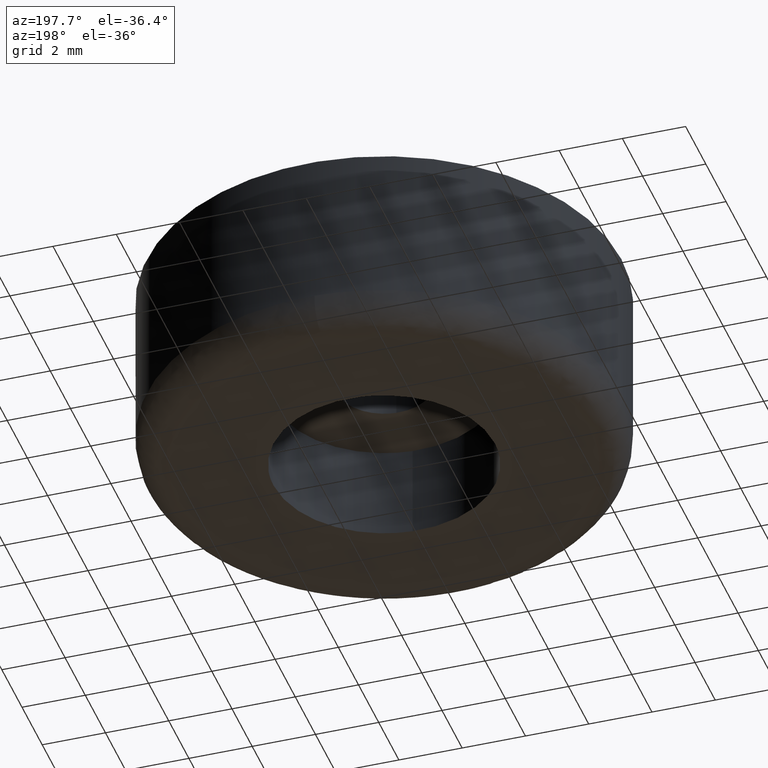
[diagram: clean part render]
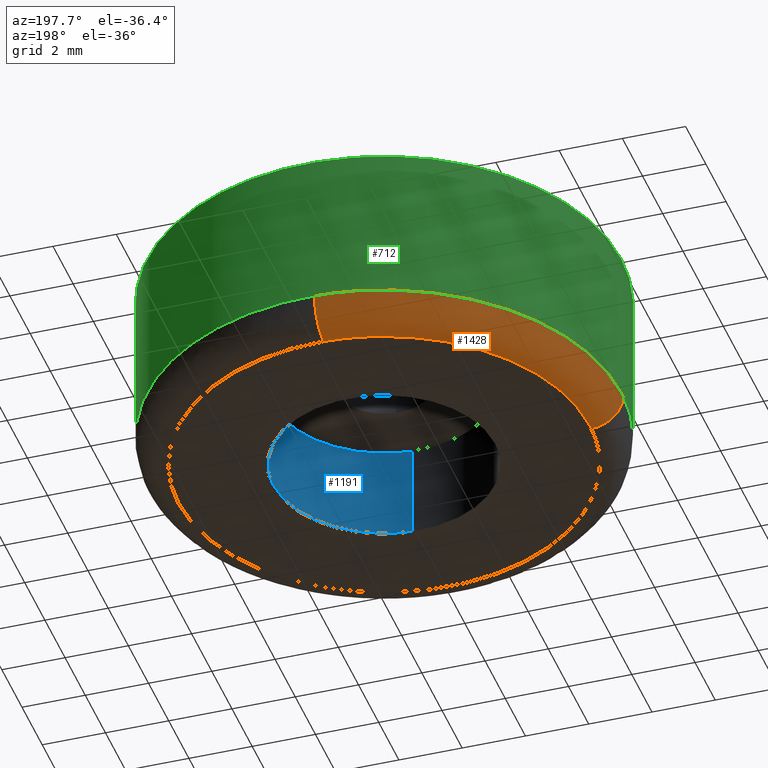
[diagram: same view with three faces highlighted in distinct colors, each labeled with its STEP entity id]
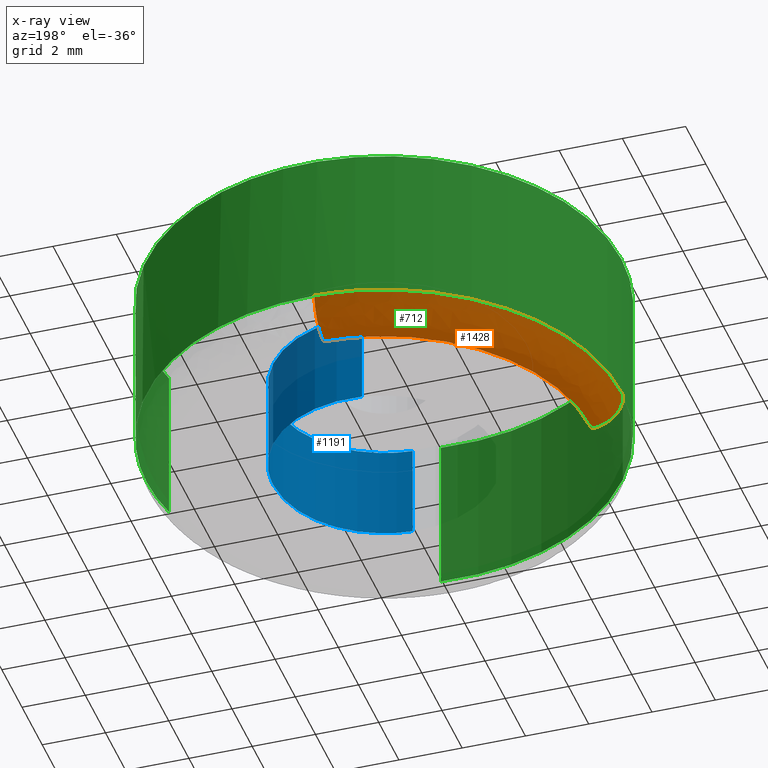
[diagram: x-ray of the same camera — body ghosted, the three highlighted faces saturated]
A machine part, auxiliary view with three faces highlighted in distinct colors.
The next image is the same camera in x-ray (body ghosted, the three faces saturated) — at least one of them is partly hidden behind the body in this view.
Their STEP definitions:

[orange] entity #1428 — the highlighted face is a freeform B-spline surface patch.
#599=CARTESIAN_POINT('',(-0.188475715825910,7.497631419624726,0.999999999969388));
#600=VERTEX_POINT('',#599);
#616=CARTESIAN_POINT('',(-7.500000000000000,0.0,1.0));
#617=VERTEX_POINT('',#616);
#618=CARTESIAN_POINT('',(-7.500000000000000,0.0,1.0));
#619=CARTESIAN_POINT('',(-7.500000000000000,7.313834071353154,1.0));
#620=CARTESIAN_POINT('',(-0.188475715825910,7.497631419624726,0.999999999969388));
#628=(BOUNDED_CURVE()B_SPLINE_CURVE(2,(#618,#619,#620),.UNSPECIFIED.,.F.,.U.)B_SPLINE_CURVE_WITH_KNOTS((3,3),(0.0,0.245579891769767),.UNSPECIFIED.)CURVE()GEOMETRIC_REPRESENTATION_ITEM()RATIONAL_B_SPLINE_CURVE((1.0,0.712285260094775,0.989826157681484))REPRESENTATION_ITEM(''));
#629=EDGE_CURVE('',#617,#600,#628,.T.);
#631=CARTESIAN_POINT('',(-7.497631419624732,-0.188475715825685,0.999999999969351));
#632=VERTEX_POINT('',#631);
#633=CARTESIAN_POINT('',(-7.497631419624732,-0.188475715825685,0.999999999969351));
#634=CARTESIAN_POINT('',(-7.500000000000000,-0.094252740926001,1.0));
#635=CARTESIAN_POINT('',(-7.500000000000000,0.0,1.0));
#643=(BOUNDED_CURVE()B_SPLINE_CURVE(2,(#633,#634,#635),.UNSPECIFIED.,.F.,.U.)B_SPLINE_CURVE_WITH_KNOTS((3,3),(0.995579891769777,1.0),.UNSPECIFIED.)CURVE()GEOMETRIC_REPRESENTATION_ITEM()RATIONAL_B_SPLINE_CURVE((0.989826157681507,0.994821521091785,1.0))REPRESENTATION_ITEM(''));
#644=EDGE_CURVE('',#632,#617,#643,.T.);
#1308=CARTESIAN_POINT('',(-0.163345620416824,6.497947230636082,1.874299E-016));
#1309=VERTEX_POINT('',#1308);
#1327=CARTESIAN_POINT('',(-0.188475715825910,7.497631419624727,0.999999999969388));
#1328=CARTESIAN_POINT('',(-0.188475715823492,7.497631419563542,5.908459E-010));
#1329=CARTESIAN_POINT('',(-0.163345620416824,6.497947230636082,1.874299E-016));
#1337=(BOUNDED_CURVE()B_SPLINE_CURVE(2,(#1327,#1328,#1329),.UNSPECIFIED.,.F.,.U.)B_SPLINE_CURVE_WITH_KNOTS((3,3),(-1.723441281921734,-0.263586879539333),.UNSPECIFIED.)CURVE()GEOMETRIC_REPRESENTATION_ITEM()RATIONAL_B_SPLINE_CURVE((0.883897567116448,0.626638727356608,0.888510408843165))REPRESENTATION_ITEM(''));
#1338=EDGE_CURVE('',#600,#1309,#1337,.T.);
#1344=CARTESIAN_POINT('',(-6.497947230641152,-0.163345620417484,1.718108E-016));
#1345=VERTEX_POINT('',#1344);
#1346=CARTESIAN_POINT('',(-7.497631419624733,-0.188475715825685,0.999999999969351));
#1347=CARTESIAN_POINT('',(-7.497631419563468,-0.188475715823490,6.010167E-010));
#1348=CARTESIAN_POINT('',(-6.497947230641152,-0.163345620417484,1.718108E-016));
#1356=(BOUNDED_CURVE()B_SPLINE_CURVE(2,(#1346,#1347,#1348),.UNSPECIFIED.,.F.,.U.)B_SPLINE_CURVE_WITH_KNOTS((3,3),(-1.723441281921656,-0.263586879549860),.UNSPECIFIED.)CURVE()GEOMETRIC_REPRESENTATION_ITEM()RATIONAL_B_SPLINE_CURVE((0.883897567116421,0.626638727358476,0.888510408839388))REPRESENTATION_ITEM(''));
#1357=EDGE_CURVE('',#632,#1345,#1356,.T.);
#1377=CARTESIAN_POINT('',(-7.495198495044043,-0.188414556883462,1.069724195741099));
#1378=CARTESIAN_POINT('',(-7.683613051927504,7.306783938160581,1.069724195741099));
#1379=CARTESIAN_POINT('',(-0.188414556883462,7.495198495044043,1.069724195741099));
#1380=CARTESIAN_POINT('',(-7.575346138372714,-0.190429311090840,-0.077335954148859));
#1381=CARTESIAN_POINT('',(-7.765775449463555,7.384916827281872,-0.077335954148859));
#1382=CARTESIAN_POINT('',(-0.190429311090841,7.575346138372714,-0.077335954148859));
#1383=CARTESIAN_POINT('',(-6.428618323941044,-0.161602827954343,0.002407665721173));
#1384=CARTESIAN_POINT('',(-6.590221151895387,6.267015495986699,0.002407665721173));
#1385=CARTESIAN_POINT('',(-0.161602827954344,6.428618323941044,0.002407665721173));
#1393=(BOUNDED_SURFACE()B_SPLINE_SURFACE(2,2,((#1377,#1380,#1383),(#1378,#1381,#1384),(#1379,#1382,#1385)),.UNSPECIFIED.,.F.,.F.,.U.)B_SPLINE_SURFACE_WITH_KNOTS((3,3),(3,3),(0.0,12.422374596327000),(0.0,1.822370621908858),.UNSPECIFIED.)GEOMETRIC_REPRESENTATION_ITEM()RATIONAL_B_SPLINE_SURFACE(((0.910892946007135,0.599412883198042,0.915966720026040),(0.644098579056637,0.423848914439916,0.647686279071612),(0.910892946007135,0.599412883198042,0.915966720026040)))REPRESENTATION_ITEM('')SURFACE());
#1394=CARTESIAN_POINT('',(-6.500000000000000,0.0,0.0));
#1395=VERTEX_POINT('',#1394);
#1396=CARTESIAN_POINT('',(-6.500000000000000,0.0,0.0));
#1397=CARTESIAN_POINT('',(-6.499999999999999,6.338656195120151,0.0));
#1398=CARTESIAN_POINT('',(-0.163345620416824,6.497947230636082,1.874299E-016));
#1406=(BOUNDED_CURVE()B_SPLINE_CURVE(2,(#1396,#1397,#1398),.UNSPECIFIED.,.F.,.U.)B_SPLINE_CURVE_WITH_KNOTS((3,3),(0.0,0.245579891768315),.UNSPECIFIED.)CURVE()GEOMETRIC_REPRESENTATION_ITEM()RATIONAL_B_SPLINE_CURVE((1.0,0.712285260096475,0.989826157678204))REPRESENTATION_ITEM(''));
#1407=EDGE_CURVE('',#1395,#1309,#1406,.T.);
#1408=ORIENTED_EDGE('',*,*,#1407,.F.);
#1409=CARTESIAN_POINT('',(-6.497947230641152,-0.163345620417484,1.718108E-016));
#1410=CARTESIAN_POINT('',(-6.500000000000000,-0.081685708830220,0.0));
#1411=CARTESIAN_POINT('',(-6.500000000000000,0.0,0.0));
#1419=(BOUNDED_CURVE()B_SPLINE_CURVE(2,(#1409,#1410,#1411),.UNSPECIFIED.,.F.,.U.)B_SPLINE_CURVE_WITH_KNOTS((3,3),(0.995579891768287,1.0),.UNSPECIFIED.)CURVE()GEOMETRIC_REPRESENTATION_ITEM()RATIONAL_B_SPLINE_CURVE((0.989826157678138,0.994821521090039,1.0))REPRESENTATION_ITEM(''));
#1420=EDGE_CURVE('',#1345,#1395,#1419,.T.);
#1421=ORIENTED_EDGE('',*,*,#1420,.F.);
#1422=ORIENTED_EDGE('',*,*,#1357,.F.);
#1423=ORIENTED_EDGE('',*,*,#644,.T.);
#1424=ORIENTED_EDGE('',*,*,#629,.T.);
#1425=ORIENTED_EDGE('',*,*,#1338,.T.);
#1426=EDGE_LOOP('',(#1408,#1421,#1422,#1423,#1424,#1425));
#1427=FACE_OUTER_BOUND('',#1426,.T.);
#1428=ADVANCED_FACE('',(#1427),#1393,.T.);

[blue] entity #1191 — the highlighted face is a freeform B-spline surface patch.
#1085=CARTESIAN_POINT('',(-0.464692969978117,3.469403091785194,3.075000000000001));
#1086=CARTESIAN_POINT('',(-0.438833692727048,3.472476858872088,3.075000000000001));
#1087=CARTESIAN_POINT('',(-0.313651550232922,3.487356654070120,3.075000000000001));
#1088=CARTESIAN_POINT('',(-0.213669888371999,3.493471794476533,3.075000000000001));
#1089=CARTESIAN_POINT('',(3.279801906104533,3.707141682848533,3.075000000000000));
#1090=CARTESIAN_POINT('',(3.493471794476533,0.213669888371999,3.075000000000001));
#1091=CARTESIAN_POINT('',(3.707141682848533,-3.279801906104533,3.075000000000000));
#1092=CARTESIAN_POINT('',(0.188545704601122,-3.495008455385102,3.075000000000000));
#1093=CARTESIAN_POINT('',(0.163570762186099,-3.496535988301314,3.075000000000002));
#1094=CARTESIAN_POINT('',(-0.464692969978117,3.469403091785194,-0.076875000000000));
#1095=CARTESIAN_POINT('',(-0.438833692727048,3.472476858872088,-0.076875000000000));
#1096=CARTESIAN_POINT('',(-0.313651550232922,3.487356654070120,-0.076875000000000));
#1097=CARTESIAN_POINT('',(-0.213669888371999,3.493471794476533,-0.076875000000000));
#1098=CARTESIAN_POINT('',(3.279801906104533,3.707141682848533,-0.076875000000000));
#1099=CARTESIAN_POINT('',(3.493471794476533,0.213669888371999,-0.076875000000000));
#1100=CARTESIAN_POINT('',(3.707141682848533,-3.279801906104533,-0.076875000000000));
#1101=CARTESIAN_POINT('',(0.188545704601122,-3.495008455385102,-0.076875000000000));
#1102=CARTESIAN_POINT('',(0.163570762186099,-3.496535988301314,-0.076875000000000));
#1110=(BOUNDED_SURFACE()B_SPLINE_SURFACE(2,1,((#1085,#1094),(#1086,#1095),(#1087,#1096),(#1088,#1097),(#1089,#1098),(#1090,#1099),(#1091,#1100),(#1092,#1101),(#1093,#1102)),.UNSPECIFIED.,.F.,.F.,.U.)B_SPLINE_SURFACE_WITH_KNOTS((3,1,2,2,1,3),(2,2),(0.0,0.059143901406196,0.291103496335129,6.090093369558459,11.889083242781791,11.948239096760179),(0.0,3.151875000000002),.UNSPECIFIED.)GEOMETRIC_REPRESENTATION_ITEM()RATIONAL_B_SPLINE_SURFACE(((0.972009319445107,0.972009319445107),(0.974757560120117,0.974757560120117),(0.988284271247462,0.988284271247462),(1.0,1.0),(0.707106781186548,0.707106781186548),(1.0,1.0),(0.707106781186548,0.707106781186548),(1.002987821821072,1.002987821821072),(1.005975643642143,1.005975643642143)))REPRESENTATION_ITEM('')SURFACE());
#1111=CARTESIAN_POINT('',(-0.413114733030786,3.475533947083044,-1.670294E-014));
#1112=VERTEX_POINT('',#1111);
#1113=CARTESIAN_POINT('',(3.500000000000000,0.0,0.0));
#1114=VERTEX_POINT('',#1113);
#1115=CARTESIAN_POINT('',(-0.413114733030786,3.475533947083044,-1.670294E-014));
#1116=CARTESIAN_POINT('',(-0.207281847752051,3.500000000000000,0.0));
#1117=CARTESIAN_POINT('',(0.0,3.500000000000000,0.0));
#1118=CARTESIAN_POINT('',(3.500000000000000,3.500000000000000,0.0));
#1119=CARTESIAN_POINT('',(3.500000000000000,0.0,0.0));
#1127=(BOUNDED_CURVE()B_SPLINE_CURVE(2,(#1115,#1116,#1117,#1118,#1119),.UNSPECIFIED.,.F.,.U.)B_SPLINE_CURVE_WITH_KNOTS((3,2,3),(0.229562720940656,0.250000000000000,0.500000000000000),.UNSPECIFIED.)CURVE()GEOMETRIC_REPRESENTATION_ITEM()RATIONAL_B_SPLINE_CURVE((0.956027239151607,0.976056238210079,1.0,0.707106781186547,1.0))REPRESENTATION_ITEM(''));
#1128=EDGE_CURVE('',#1112,#1114,#1127,.T.);
#1129=ORIENTED_EDGE('',*,*,#1128,.T.);
#1130=CARTESIAN_POINT('',(0.213664643025975,-3.493472115287735,-2.089995E-014));
#1131=VERTEX_POINT('',#1130);
#1132=CARTESIAN_POINT('',(3.500000000000000,0.0,0.0));
#1133=CARTESIAN_POINT('',(3.500000000000000,-3.292476186960466,0.0));
#1134=CARTESIAN_POINT('',(0.213664643025976,-3.493472115287735,-2.089995E-014));
#1142=(BOUNDED_CURVE()B_SPLINE_CURVE(2,(#1132,#1133,#1134),.UNSPECIFIED.,.F.,.U.)B_SPLINE_CURVE_WITH_KNOTS((3,3),(0.500000000000000,0.739333221315991),.UNSPECIFIED.)CURVE()GEOMETRIC_REPRESENTATION_ITEM()RATIONAL_B_SPLINE_CURVE((1.0,0.719603689759067,0.976072596918779))REPRESENTATION_ITEM(''));
#1143=EDGE_CURVE('',#1114,#1131,#1142,.T.);
#1144=ORIENTED_EDGE('',*,*,#1143,.T.);
#1145=CARTESIAN_POINT('',(0.213664707766594,-3.493472111328224,3.0));
#1146=VERTEX_POINT('',#1145);
#1147=CARTESIAN_POINT('',(0.213664707766594,-3.493472111328224,3.0));
#1148=CARTESIAN_POINT('',(0.213664643025975,-3.493472115287735,-2.089995E-014));
#1149=QUASI_UNIFORM_CURVE('',1,(#1147,#1148),.UNSPECIFIED.,.F.,.U.);
#1150=EDGE_CURVE('',#1146,#1131,#1149,.T.);
#1151=ORIENTED_EDGE('',*,*,#1150,.F.);
#1152=CARTESIAN_POINT('',(3.500000000000000,0.0,3.0));
#1153=VERTEX_POINT('',#1152);
#1154=CARTESIAN_POINT('',(3.500000000000000,0.0,3.0));
#1155=CARTESIAN_POINT('',(3.499999999999999,-3.292476125830673,3.000000000000001));
#1156=CARTESIAN_POINT('',(0.213664707766594,-3.493472111328224,3.0));
#1164=(BOUNDED_CURVE()B_SPLINE_CURVE(2,(#1154,#1155,#1156),.UNSPECIFIED.,.F.,.U.)B_SPLINE_CURVE_WITH_KNOTS((3,3),(0.500000000000000,0.739333218118373),.UNSPECIFIED.)CURVE()GEOMETRIC_REPRESENTATION_ITEM()RATIONAL_B_SPLINE_CURVE((1.0,0.719603693505311,0.976072590065658))REPRESENTATION_ITEM(''));
#1165=EDGE_CURVE('',#1153,#1146,#1164,.T.);
#1166=ORIENTED_EDGE('',*,*,#1165,.F.);
#1167=CARTESIAN_POINT('',(-0.413114795826384,3.475533939619020,3.0));
#1168=VERTEX_POINT('',#1167);
#1169=CARTESIAN_POINT('',(-0.413114795826384,3.475533939619021,3.000000000000000));
#1170=CARTESIAN_POINT('',(-0.207281879481770,3.500000000000001,3.0));
#1171=CARTESIAN_POINT('',(0.0,3.500000000000000,3.0));
#1172=CARTESIAN_POINT('',(3.500000000000000,3.500000000000000,3.000000000000000));
#1173=CARTESIAN_POINT('',(3.500000000000000,0.0,3.0));
#1181=(BOUNDED_CURVE()B_SPLINE_CURVE(2,(#1169,#1170,#1171,#1172,#1173),.UNSPECIFIED.,.F.,.U.)B_SPLINE_CURVE_WITH_KNOTS((3,2,3),(0.229562717887121,0.250000000000000,0.500000000000000),.UNSPECIFIED.)CURVE()GEOMETRIC_REPRESENTATION_ITEM()RATIONAL_B_SPLINE_CURVE((0.956027233166540,0.976056234632641,1.0,0.707106781186547,1.0))REPRESENTATION_ITEM(''));
#1182=EDGE_CURVE('',#1168,#1153,#1181,.T.);
#1183=ORIENTED_EDGE('',*,*,#1182,.F.);
#1184=CARTESIAN_POINT('',(-0.413114795826384,3.475533939619020,3.0));
#1185=CARTESIAN_POINT('',(-0.413114733030786,3.475533947083044,-1.670294E-014));
#1186=QUASI_UNIFORM_CURVE('',1,(#1184,#1185),.UNSPECIFIED.,.F.,.U.);
#1187=EDGE_CURVE('',#1168,#1112,#1186,.T.);
#1188=ORIENTED_EDGE('',*,*,#1187,.T.);
#1189=EDGE_LOOP('',(#1129,#1144,#1151,#1166,#1183,#1188));
#1190=FACE_OUTER_BOUND('',#1189,.T.);
#1191=ADVANCED_FACE('',(#1190),#1110,.F.);

[green] entity #712 — the highlighted face is a freeform B-spline surface patch.
#511=CARTESIAN_POINT('',(7.319767499703203,-1.634320577568768,0.999999999999985));
#512=VERTEX_POINT('',#511);
#513=CARTESIAN_POINT('',(0.588438864141156,-7.476880345648791,1.000000000000012));
#514=VERTEX_POINT('',#513);
#528=CARTESIAN_POINT('',(7.319767486532108,-1.634320636559426,6.0));
#529=VERTEX_POINT('',#528);
#530=CARTESIAN_POINT('',(7.319767486532108,-1.634320636559426,6.0));
#531=CARTESIAN_POINT('',(7.319767499703203,-1.634320577568768,0.999999999999985));
#532=QUASI_UNIFORM_CURVE('',1,(#530,#531),.UNSPECIFIED.,.F.,.U.);
#533=EDGE_CURVE('',#529,#512,#532,.T.);
#535=CARTESIAN_POINT('',(0.588438917835223,-7.476880341423037,6.0));
#536=VERTEX_POINT('',#535);
#550=CARTESIAN_POINT('',(0.588438917835223,-7.476880341423037,6.0));
#551=CARTESIAN_POINT('',(0.588438864141156,-7.476880345648791,1.000000000000012));
#552=QUASI_UNIFORM_CURVE('',1,(#550,#551),.UNSPECIFIED.,.F.,.U.);
#553=EDGE_CURVE('',#536,#514,#552,.T.);
#558=CARTESIAN_POINT('',(0.588443217958836,-7.476880002998457,6.125000000000767));
#559=CARTESIAN_POINT('',(-6.888436785039621,-8.065323220957295,6.125000000000767));
#560=CARTESIAN_POINT('',(-7.476880002998457,-0.588443217958836,6.125000000000767));
#561=CARTESIAN_POINT('',(-8.065323220957295,6.888436785039621,6.125000000000767));
#562=CARTESIAN_POINT('',(-0.588443217958836,7.476880002998457,6.125000000000767));
#563=CARTESIAN_POINT('',(6.888436785039621,8.065323220957295,6.125000000000767));
#564=CARTESIAN_POINT('',(7.476880002998457,0.588443217958836,6.125000000000767));
#565=CARTESIAN_POINT('',(7.565276593325443,-0.534741956715614,6.125000000000767));
#566=CARTESIAN_POINT('',(7.319766432520155,-1.634325357250233,6.125000000000766));
#567=CARTESIAN_POINT('',(0.588443217958836,-7.476880002998457,0.871874999968565));
#568=CARTESIAN_POINT('',(-6.888436785039621,-8.065323220957295,0.871874999968565));
#569=CARTESIAN_POINT('',(-7.476880002998457,-0.588443217958836,0.871874999968565));
#570=CARTESIAN_POINT('',(-8.065323220957295,6.888436785039621,0.871874999968565));
#571=CARTESIAN_POINT('',(-0.588443217958836,7.476880002998457,0.871874999968565));
#572=CARTESIAN_POINT('',(6.888436785039621,8.065323220957295,0.871874999968565));
#573=CARTESIAN_POINT('',(7.476880002998457,0.588443217958836,0.871874999968565));
#574=CARTESIAN_POINT('',(7.565276593325443,-0.534741956715614,0.871874999968565));
#575=CARTESIAN_POINT('',(7.319766432520155,-1.634325357250233,0.871874999968565));
#583=(BOUNDED_SURFACE()B_SPLINE_SURFACE(2,1,((#558,#567),(#559,#568),(#560,#569),(#561,#570),(#562,#571),(#563,#572),(#564,#573),(#565,#574),(#566,#575)),.UNSPECIFIED.,.F.,.F.,.U.)B_SPLINE_SURFACE_WITH_KNOTS((3,2,2,2,3),(2,2),(0.0,12.426406871192849,24.852813742385699,37.279220613578552,39.764501987817113),(0.0,5.253125000032203),.UNSPECIFIED.)GEOMETRIC_REPRESENTATION_ITEM()RATIONAL_B_SPLINE_SURFACE(((1.0,1.0),(0.707106781186548,0.707106781186548),(1.0,1.0),(0.707106781186548,0.707106781186548),(1.0,1.0),(0.707106781186548,0.707106781186548),(1.0,1.0),(0.941421356237310,0.941421356237310),(0.906274169979695,0.906274169979695)))REPRESENTATION_ITEM('')SURFACE());
#584=CARTESIAN_POINT('',(7.500000000000000,0.0,1.0));
#585=VERTEX_POINT('',#584);
#586=CARTESIAN_POINT('',(7.500000000000000,0.0,1.0));
#587=CARTESIAN_POINT('',(7.500000000000000,-0.827098288283712,1.0));
#588=CARTESIAN_POINT('',(7.319767499703203,-1.634320577568768,0.999999999999985));
#596=(BOUNDED_CURVE()B_SPLINE_CURVE(2,(#586,#587,#588),.UNSPECIFIED.,.F.,.U.)B_SPLINE_CURVE_WITH_KNOTS((3,3),(0.500000000000000,0.537286560370751),.UNSPECIFIED.)CURVE()GEOMETRIC_REPRESENTATION_ITEM()RATIONAL_B_SPLINE_CURVE((1.0,0.956316077258115,0.925662740296602))REPRESENTATION_ITEM(''));
#597=EDGE_CURVE('',#585,#512,#596,.T.);
#598=ORIENTED_EDGE('',*,*,#597,.F.);
#599=CARTESIAN_POINT('',(-0.188475715825910,7.497631419624726,0.999999999969388));
#600=VERTEX_POINT('',#599);
#601=CARTESIAN_POINT('',(-0.188475715825910,7.497631419624726,0.999999999969388));
#602=CARTESIAN_POINT('',(-0.094252740926227,7.499999999999999,1.0));
#603=CARTESIAN_POINT('',(0.0,7.500000000000000,1.0));
#604=CARTESIAN_POINT('',(7.500000000000000,7.500000000000000,1.0));
#605=CARTESIAN_POINT('',(7.500000000000000,0.0,1.0));
#613=(BOUNDED_CURVE()B_SPLINE_CURVE(2,(#601,#602,#603,#604,#605),.UNSPECIFIED.,.F.,.U.)B_SPLINE_CURVE_WITH_KNOTS((3,2,3),(0.245579891769767,0.250000000000000,0.500000000000000),.UNSPECIFIED.)CURVE()GEOMETRIC_REPRESENTATION_ITEM()RATIONAL_B_SPLINE_CURVE((0.989826157681483,0.994821521091772,1.0,0.707106781186547,1.0))REPRESENTATION_ITEM(''));
#614=EDGE_CURVE('',#600,#585,#613,.T.);
#615=ORIENTED_EDGE('',*,*,#614,.F.);
#616=CARTESIAN_POINT('',(-7.500000000000000,0.0,1.0));
#617=VERTEX_POINT('',#616);
#618=CARTESIAN_POINT('',(-7.500000000000000,0.0,1.0));
#619=CARTESIAN_POINT('',(-7.500000000000000,7.313834071353154,1.0));
#620=CARTESIAN_POINT('',(-0.188475715825910,7.497631419624726,0.999999999969388));
#628=(BOUNDED_CURVE()B_SPLINE_CURVE(2,(#618,#619,#620),.UNSPECIFIED.,.F.,.U.)B_SPLINE_CURVE_WITH_KNOTS((3,3),(0.0,0.245579891769767),.UNSPECIFIED.)CURVE()GEOMETRIC_REPRESENTATION_ITEM()RATIONAL_B_SPLINE_CURVE((1.0,0.712285260094775,0.989826157681484))REPRESENTATION_ITEM(''));
#629=EDGE_CURVE('',#617,#600,#628,.T.);
#630=ORIENTED_EDGE('',*,*,#629,.F.);
#631=CARTESIAN_POINT('',(-7.497631419624732,-0.188475715825685,0.999999999969351));
#632=VERTEX_POINT('',#631);
#633=CARTESIAN_POINT('',(-7.497631419624732,-0.188475715825685,0.999999999969351));
#634=CARTESIAN_POINT('',(-7.500000000000000,-0.094252740926001,1.0));
#635=CARTESIAN_POINT('',(-7.500000000000000,0.0,1.0));
#643=(BOUNDED_CURVE()B_SPLINE_CURVE(2,(#633,#634,#635),.UNSPECIFIED.,.F.,.U.)B_SPLINE_CURVE_WITH_KNOTS((3,3),(0.995579891769777,1.0),.UNSPECIFIED.)CURVE()GEOMETRIC_REPRESENTATION_ITEM()RATIONAL_B_SPLINE_CURVE((0.989826157681507,0.994821521091785,1.0))REPRESENTATION_ITEM(''));
#644=EDGE_CURVE('',#632,#617,#643,.T.);
#645=ORIENTED_EDGE('',*,*,#644,.F.);
#646=CARTESIAN_POINT('',(0.588438864141156,-7.476880345648791,1.000000000000012));
#647=CARTESIAN_POINT('',(0.294673615546460,-7.500000000000000,1.0));
#648=CARTESIAN_POINT('',(0.0,-7.500000000000000,1.0));
#649=CARTESIAN_POINT('',(-7.313834071353607,-7.499999999999999,1.0));
#650=CARTESIAN_POINT('',(-7.497631419624732,-0.188475715825685,0.999999999969351));
#658=(BOUNDED_CURVE()B_SPLINE_CURVE(2,(#646,#647,#648,#649,#650),.UNSPECIFIED.,.F.,.U.)B_SPLINE_CURVE_WITH_KNOTS((3,2,3),(0.736331400453952,0.750000000000000,0.995579891769777),.UNSPECIFIED.)CURVE()GEOMETRIC_REPRESENTATION_ITEM()RATIONAL_B_SPLINE_CURVE((0.969723564491107,0.983986239529144,1.0,0.712285260094762,0.989826157681508))REPRESENTATION_ITEM(''));
#659=EDGE_CURVE('',#514,#632,#658,.T.);
#660=ORIENTED_EDGE('',*,*,#659,.F.);
#661=ORIENTED_EDGE('',*,*,#553,.F.);
#662=CARTESIAN_POINT('',(-7.500000000000000,0.0,6.0));
#663=VERTEX_POINT('',#662);
#664=CARTESIAN_POINT('',(0.588438917835223,-7.476880341423037,6.0));
#665=CARTESIAN_POINT('',(0.294673642518079,-7.500000000000000,5.999999999999999));
#666=CARTESIAN_POINT('',(0.0,-7.500000000000000,6.0));
#667=CARTESIAN_POINT('',(-7.500000000000000,-7.500000000000000,6.0));
#668=CARTESIAN_POINT('',(-7.500000000000000,0.0,6.0));
#676=(BOUNDED_CURVE()B_SPLINE_CURVE(2,(#664,#665,#666,#667,#668),.UNSPECIFIED.,.F.,.U.)B_SPLINE_CURVE_WITH_KNOTS((3,2,3),(0.736331399222893,0.750000000000000,1.0),.UNSPECIFIED.)CURVE()GEOMETRIC_REPRESENTATION_ITEM()RATIONAL_B_SPLINE_CURVE((0.969723561921979,0.983986238086868,1.0,0.707106781186547,1.0))REPRESENTATION_ITEM(''));
#677=EDGE_CURVE('',#536,#663,#676,.T.);
#678=ORIENTED_EDGE('',*,*,#677,.T.);
#679=CARTESIAN_POINT('',(7.500000000000000,0.0,6.0));
#680=VERTEX_POINT('',#679);
#681=CARTESIAN_POINT('',(-7.500000000000000,0.0,6.0));
#682=CARTESIAN_POINT('',(-7.500000000000000,7.500000000000000,6.0));
#683=CARTESIAN_POINT('',(0.0,7.500000000000000,6.0));
#684=CARTESIAN_POINT('',(7.500000000000000,7.500000000000000,6.0));
#685=CARTESIAN_POINT('',(7.500000000000000,0.0,6.0));
#693=(BOUNDED_CURVE()B_SPLINE_CURVE(2,(#681,#682,#683,#684,#685),.UNSPECIFIED.,.F.,.U.)B_SPLINE_CURVE_WITH_KNOTS((3,2,3),(0.0,0.250000000000000,0.500000000000000),.UNSPECIFIED.)CURVE()GEOMETRIC_REPRESENTATION_ITEM()RATIONAL_B_SPLINE_CURVE((1.0,0.707106781186547,1.0,0.707106781186547,1.0))REPRESENTATION_ITEM(''));
#694=EDGE_CURVE('',#663,#680,#693,.T.);
#695=ORIENTED_EDGE('',*,*,#694,.T.);
#696=CARTESIAN_POINT('',(7.500000000000000,0.0,6.0));
#697=CARTESIAN_POINT('',(7.500000000000000,-0.827098318872834,6.000000000000002));
#698=CARTESIAN_POINT('',(7.319767486532108,-1.634320636559426,5.999999999999999));
#706=(BOUNDED_CURVE()B_SPLINE_CURVE(2,(#696,#697,#698),.UNSPECIFIED.,.F.,.U.)B_SPLINE_CURVE_WITH_KNOTS((3,3),(0.500000000000000,0.537286561689504),.UNSPECIFIED.)CURVE()GEOMETRIC_REPRESENTATION_ITEM()RATIONAL_B_SPLINE_CURVE((1.0,0.956316075713099,0.925662738128303))REPRESENTATION_ITEM(''));
#707=EDGE_CURVE('',#680,#529,#706,.T.);
#708=ORIENTED_EDGE('',*,*,#707,.T.);
#709=ORIENTED_EDGE('',*,*,#533,.T.);
#710=EDGE_LOOP('',(#598,#615,#630,#645,#660,#661,#678,#695,#708,#709));
#711=FACE_OUTER_BOUND('',#710,.T.);
#712=ADVANCED_FACE('',(#711),#583,.T.);